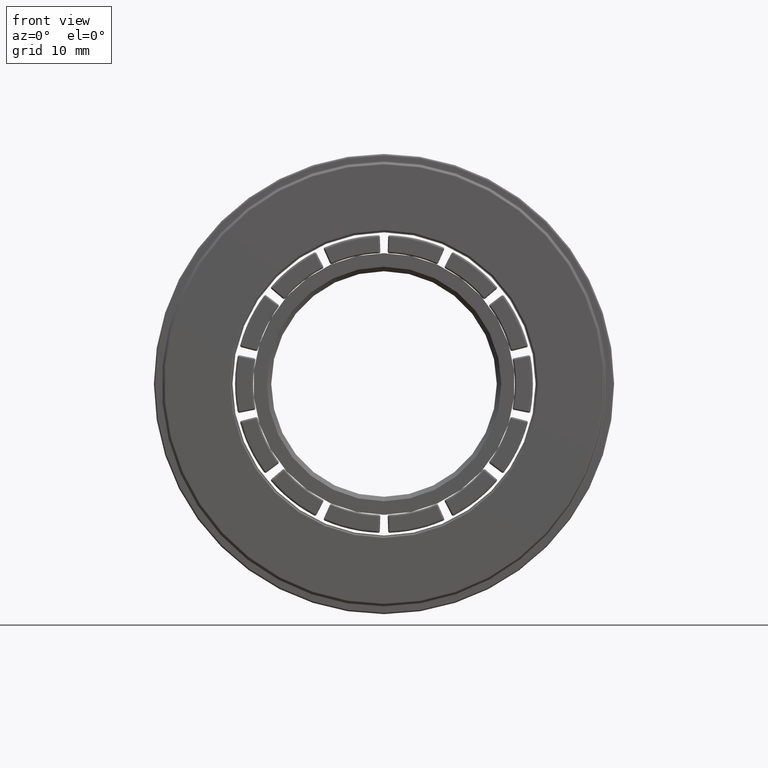
[diagram: clean part render]
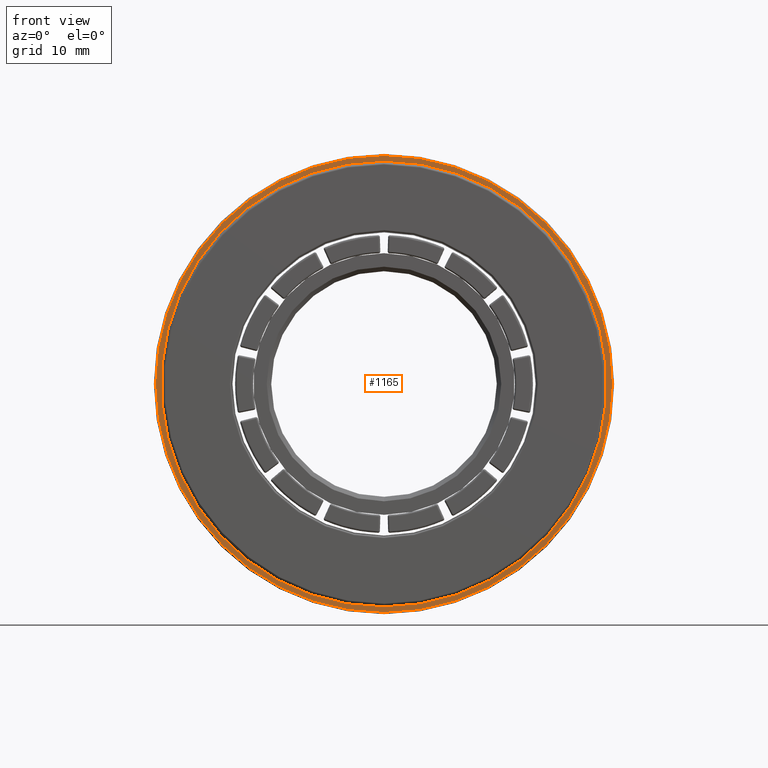
[diagram: same view with one face highlighted and labeled with its STEP entity id]
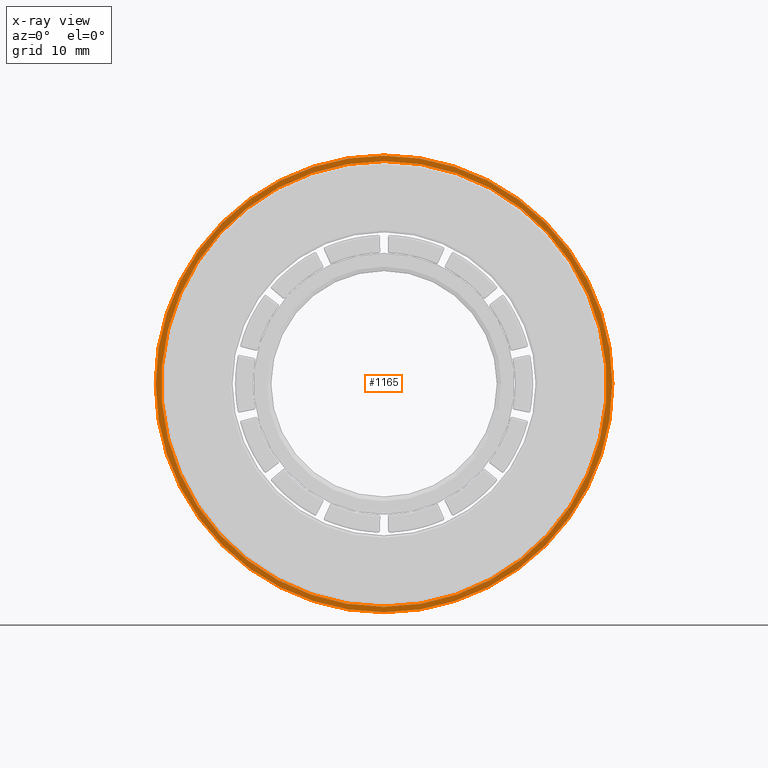
[diagram: x-ray of the same camera — body ghosted, the highlighted face saturated]
A machine part, front view. The second image highlights one B-rep face of the part: STEP entity #1165.
The next image is the same camera in x-ray: the body ghosted, the highlighted face saturated — about 0% of this face is hidden behind the body in this view.
In plain terms, the highlighted planar face has unit normal (0, -1, 0).
Its self-contained STEP definition (entity closure, byte-faithful):
#51 = CARTESIAN_POINT ( 'NONE',  ( 3.110602869834277700E-015, 3.500000000000000000, 25.30000000000000400 ) ) ;
#66 = AXIS2_PLACEMENT_3D ( 'NONE', #2264, #3047, #746 ) ;
#154 = DIRECTION ( 'NONE',  ( 0.0000000000000000000, 0.0000000000000000000, -1.000000000000000000 ) ) ;
#164 = AXIS2_PLACEMENT_3D ( 'NONE', #2229, #717, #2507 ) ;
#171 = FACE_BOUND ( 'NONE', #2865, .T. ) ;
#221 = ORIENTED_EDGE ( 'NONE', *, *, #560, .T. ) ;
#270 = CIRCLE ( 'NONE', #1633, 24.69999999999999900 ) ;
#280 = DIRECTION ( 'NONE',  ( 0.0000000000000000000, 0.0000000000000000000, -1.000000000000000000 ) ) ;
#377 = AXIS2_PLACEMENT_3D ( 'NONE', #2180, #1943, #154 ) ;
#415 = CARTESIAN_POINT ( 'NONE',  ( 3.024877593893962600E-015, 3.500000000000000000, 24.69999999999999900 ) ) ;
#445 = EDGE_LOOP ( 'NONE', ( #221, #1060 ) ) ;
#470 = DIRECTION ( 'NONE',  ( 0.0000000000000000000, 0.0000000000000000000, -1.000000000000000000 ) ) ;
#560 = EDGE_CURVE ( 'NONE', #1942, #1497, #2382, .T. ) ;
#717 = DIRECTION ( 'NONE',  ( 0.0000000000000000000, 1.000000000000000000, 0.0000000000000000000 ) ) ;
#746 = DIRECTION ( 'NONE',  ( 0.0000000000000000000, 0.0000000000000000000, -1.000000000000000000 ) ) ;
#865 = CIRCLE ( 'NONE', #164, 24.69999999999999900 ) ;
#947 = VERTEX_POINT ( 'NONE', #415 ) ;
#1060 = ORIENTED_EDGE ( 'NONE', *, *, #3110, .T. ) ;
#1128 = EDGE_CURVE ( 'NONE', #947, #2715, #865, .T. ) ;
#1165 = ADVANCED_FACE ( 'NONE', ( #1613, #171 ), #3025, .T. ) ;
#1218 = CARTESIAN_POINT ( 'NONE',  ( 0.0000000000000000000, 3.500000000000000000, -24.69999999999999900 ) ) ;
#1298 = DIRECTION ( 'NONE',  ( 0.0000000000000000000, 1.000000000000000000, 0.0000000000000000000 ) ) ;
#1476 = DIRECTION ( 'NONE',  ( 0.0000000000000000000, -1.000000000000000000, -0.0000000000000000000 ) ) ;
#1497 = VERTEX_POINT ( 'NONE', #51 ) ;
#1613 = FACE_OUTER_BOUND ( 'NONE', #445, .T. ) ;
#1633 = AXIS2_PLACEMENT_3D ( 'NONE', #2836, #1298, #280 ) ;
#1760 = ORIENTED_EDGE ( 'NONE', *, *, #1128, .T. ) ;
#1942 = VERTEX_POINT ( 'NONE', #2116 ) ;
#1943 = DIRECTION ( 'NONE',  ( -0.0000000000000000000, -1.000000000000000000, -0.0000000000000000000 ) ) ;
#2116 = CARTESIAN_POINT ( 'NONE',  ( 0.0000000000000000000, 3.500000000000000000, -25.30000000000000400 ) ) ;
#2180 = CARTESIAN_POINT ( 'NONE',  ( 0.0000000000000000000, 3.500000000000000000, 0.0000000000000000000 ) ) ;
#2229 = CARTESIAN_POINT ( 'NONE',  ( 0.0000000000000000000, 3.500000000000000000, 0.0000000000000000000 ) ) ;
#2264 = CARTESIAN_POINT ( 'NONE',  ( 0.0000000000000000000, 3.500000000000000000, 0.0000000000000000000 ) ) ;
#2382 = CIRCLE ( 'NONE', #377, 25.30000000000000400 ) ;
#2387 = CIRCLE ( 'NONE', #66, 25.30000000000000400 ) ;
#2507 = DIRECTION ( 'NONE',  ( 0.0000000000000000000, 0.0000000000000000000, -1.000000000000000000 ) ) ;
#2715 = VERTEX_POINT ( 'NONE', #1218 ) ;
#2748 = CARTESIAN_POINT ( 'NONE',  ( 25.50000000000000400, 3.500000000000000000, 0.0000000000000000000 ) ) ;
#2836 = CARTESIAN_POINT ( 'NONE',  ( 0.0000000000000000000, 3.500000000000000000, 0.0000000000000000000 ) ) ;
#2865 = EDGE_LOOP ( 'NONE', ( #3242, #1760 ) ) ;
#3025 = PLANE ( 'NONE',  #3075 ) ;
#3047 = DIRECTION ( 'NONE',  ( -0.0000000000000000000, -1.000000000000000000, -0.0000000000000000000 ) ) ;
#3075 = AXIS2_PLACEMENT_3D ( 'NONE', #2748, #1476, #470 ) ;
#3110 = EDGE_CURVE ( 'NONE', #1497, #1942, #2387, .T. ) ;
#3231 = EDGE_CURVE ( 'NONE', #2715, #947, #270, .T. ) ;
#3242 = ORIENTED_EDGE ( 'NONE', *, *, #3231, .T. ) ;